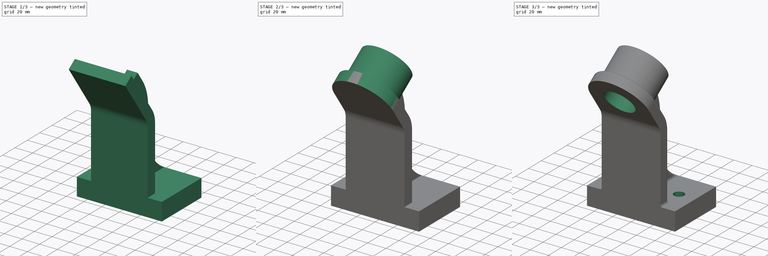
[diagram: build sequence overview — one tinted view per stage of 3, left to right]
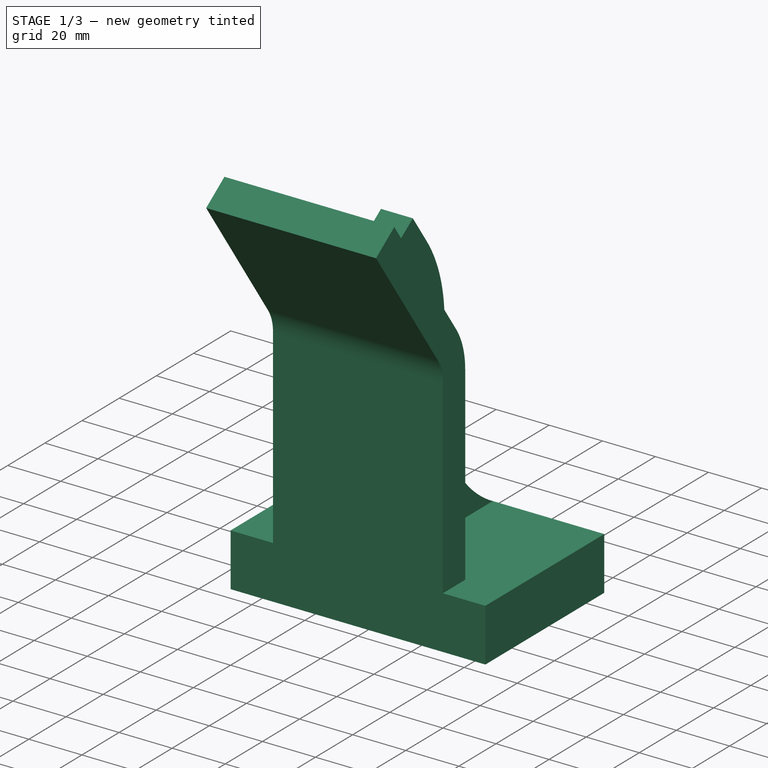
[diagram: stage 1 of 3 — iso view after this stage's code; geometry added in this stage tinted green]
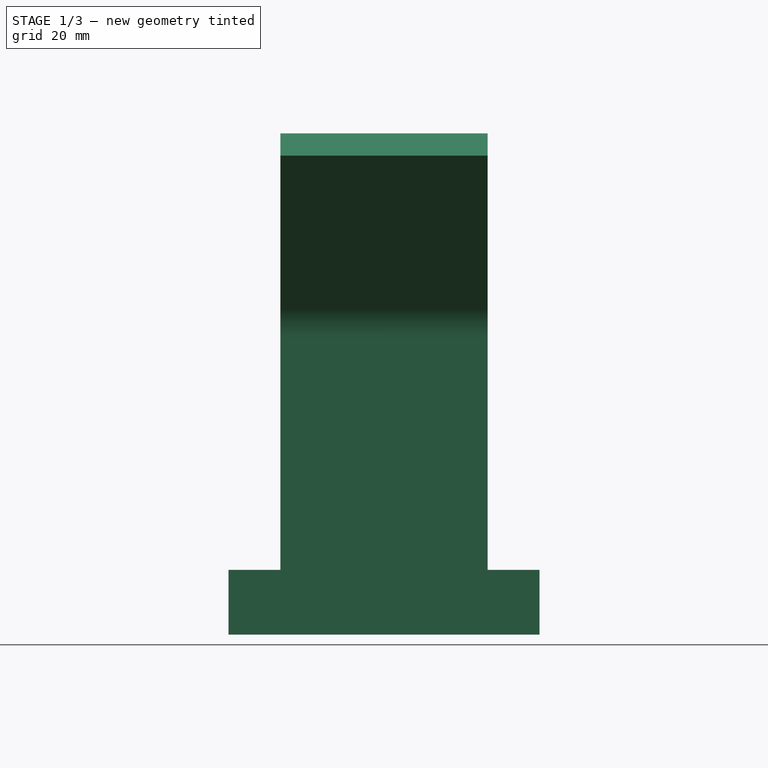
[diagram: stage 1 of 3 — front view after this stage's code; geometry added in this stage tinted green]
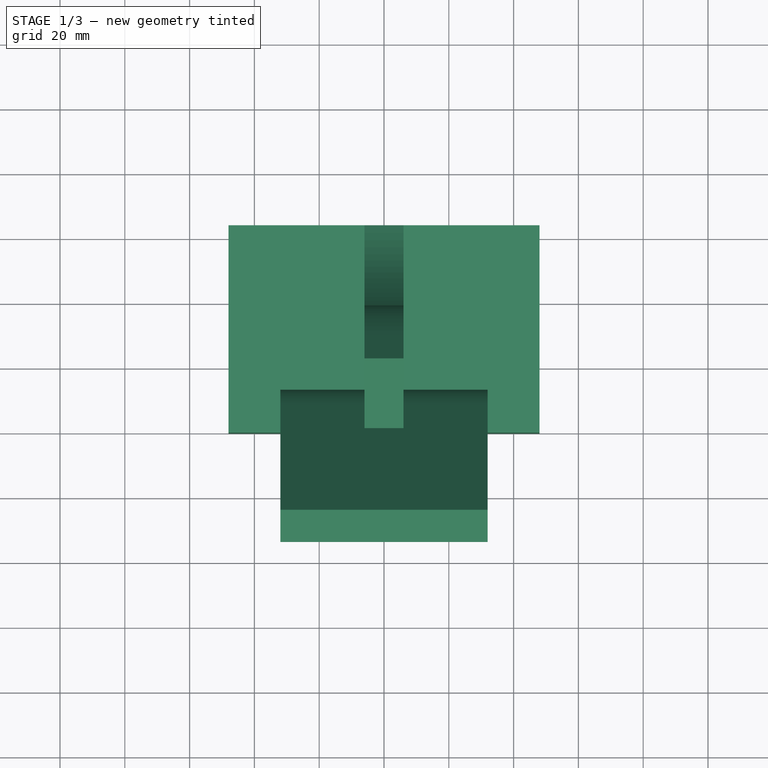
[diagram: stage 1 of 3 — top view after this stage's code; geometry added in this stage tinted green]
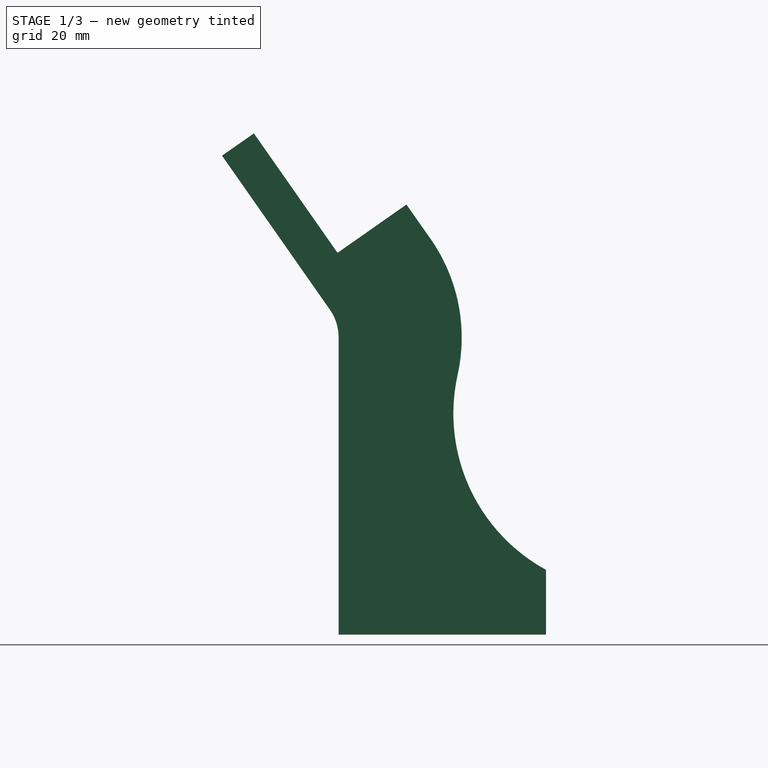
[diagram: stage 1 of 3 — right view after this stage's code; geometry added in this stage tinted green]
FCSTD DOCUMENT  (FreeCAD 1.0R39319 (Git))
Label: Mania2001-S2
License: All rights reserved
LicenseURL: https://en.wikipedia.org/wiki/All_rights_reserved
objects: Sketcher::SketchObject×7, PartDesign::Pad×4, PartDesign::Pocket×2, PartDesign::Hole×1, PartDesign::Fillet×1, PartDesign::Body×1
note: 39 computed .brp shape members not serialized (recipe doc carries the construction recipe); baked Part::Feature solids carry a one-line shape summary decoded from their .brp

FEATURE [Sketcher::SketchObject] Sketch
  ArcFitTolerance = 1e-06
  AttachmentSupport = -> [XY_Plane]
  FullyConstrained = true
  MakeInternals = false
  MapMode = 5
  sketch-geometry (4):
    g0: LineSegment StartX=-48 StartY=64 StartZ=0 EndX=-48 EndY=0 EndZ=0
    g1: LineSegment StartX=-48 StartY=0 StartZ=0 EndX=48 EndY=0 EndZ=0
    g2: LineSegment StartX=48 StartY=0 StartZ=0 EndX=48 EndY=64 EndZ=0
    g3: LineSegment StartX=48 StartY=64 StartZ=0 EndX=-48 EndY=64 EndZ=0
  constraints (11):
    c: Coincident(g0,g1)
    c: Coincident(g1,g2)
    c: Coincident(g2,g3)
    c: Coincident(g3,g0)
    c: Vertical(g0)
    c: Vertical(g2)
    c: Horizontal(g1)
    c: PointOnObject(g1,g-1)
    c: Symmetric(g2,g0,g-2)
    c: DistanceX(g3,g3) = 96
    c: DistanceY(g2,g2) = 64
FEATURE [PartDesign::Pad] Pad
  Direction = (0,0,1)
  Length = 20
  Length2 = 10
  Profile = -> Sketch
  ReferenceAxis = -> Sketch [N_Axis]
  Refine = true
  Suppressed = false
  Type = 0
FEATURE [Sketcher::SketchObject] Sketch001
  ArcFitTolerance = 1e-06
  AttachmentSupport = -> [YZ_Plane]
  ExternalGeometry = -> [Pad]
  FullyConstrained = true
  MakeInternals = false
  MapMode = 5
  Placement = pos=(0,0,0) rot=(0.57735,0.57735,0.57735;2.0944rad)
  sketch-geometry (9):
    g0: LineSegment StartX=0 StartY=20 StartZ=0 EndX=0 EndY=91.7148 EndZ=0
    g1: ArcOfCircle CenterX=-15 CenterY=91.7148 CenterZ=0 NormalX=0 NormalY=0 NormalZ=1 AngleXU=0 Radius=15 StartAngle=4e-16 EndAngle=0.610865
    g2: LineSegment StartX=-2.71272 StartY=100.318 StartZ=0 EndX=-35.9802 EndY=147.829 EndZ=0
    g3: LineSegment StartX=-35.9802 StartY=147.829 StartZ=0 EndX=-26.1503 EndY=154.712 EndZ=0
    g4: LineSegment StartX=-26.1503 StartY=154.712 StartZ=0 EndX=7.11711 EndY=107.201 EndZ=0
    g5: LineSegment StartX=12 StartY=91.7148 StartZ=0 EndX=12 EndY=20 EndZ=0
    g6: LineSegment StartX=12 StartY=20 StartZ=0 EndX=0 EndY=20 EndZ=0
    g7: LineSegment [constr] StartX=19 StartY=146 StartZ=0 EndX=-17.6257 EndY=121.616 EndZ=0
    g8: ArcOfCircle CenterX=-15 CenterY=91.7148 CenterZ=0 NormalX=0 NormalY=0 NormalZ=1 AngleXU=0 Radius=27 StartAngle=6.28318 EndAngle=6.89405
  constraints (25):
    c: PointOnObject(g0,g-2)
    c: Tangent(g0,g1) = -1.5708
    c: Tangent(g1,g2) = -1.5708
    c: Perpendicular(g2,g3) = 4.71239
    c: Coincident(g3,g4)
    c: Coincident(g5,g6)
    c: Coincident(g6,g-4)
    c: Horizontal(g6)
    c: DistanceX(g6,g6) = 12
    c: Parallel(g0,g5)
    c: Radius(g1) = 15
    c: Angle(g2,g-4) = 0.959931
    c: PointOnObject(g7,g2)
    c: Distance(g2,g7) = 32
    c: Distance(g7,g7) = 44
    c: DistanceY(g-1,g7) = 146
    c: Coincident(g6,g0)
    c: DistanceX(g7,g-4) = 45
    c: Equal(g4,g2)
    c: Coincident(g8,g1)
    c: Coincident(g8,g4)
    c: Coincident(g8,g5)
    c: Distance(g4,g2) = 12
    c: Distance(g3,g3) = 12
    c: Distance(g4,g4) = 58
FEATURE [PartDesign::Pad] Pad001
  BaseFeature = -> Pad
  Direction = (1,0,0)
  Length = 64
  Length2 = 10
  Midplane = true
  Profile = -> Sketch001
  ReferenceAxis = -> Sketch001 [N_Axis]
  Refine = true
  Suppressed = false
  Type = 0
FEATURE [Sketcher::SketchObject] Sketch002
  ArcFitTolerance = 1e-06
  AttachmentSupport = -> [YZ_Plane]
  ExternalGeometry = -> [Pad001]
  FullyConstrained = true
  MakeInternals = false
  MapMode = 5
  Placement = pos=(0,0,0) rot=(0.57735,0.57735,0.57735;2.0944rad)
  sketch-geometry (8):
    g0: LineSegment StartX=64 StartY=20 StartZ=0 EndX=12 EndY=20 EndZ=0
    g1: LineSegment StartX=12 StartY=20 StartZ=0 EndX=12 EndY=91.7148 EndZ=0
    g2: ArcOfCircle CenterX=-14.9331 CenterY=91.7148 CenterZ=0 NormalX=0 NormalY=0 NormalZ=1 AngleXU=0 Radius=26.9331 StartAngle=7.772e-13 EndAngle=0.611649
    g3: LineSegment StartX=7.11711 StartY=107.18 StartZ=0 EndX=-0.347727 EndY=117.823 EndZ=0
    g4: LineSegment StartX=-0.347727 StartY=117.823 StartZ=0 EndX=20.9385 EndY=132.753 EndZ=0
    g5: LineSegment StartX=20.9385 StartY=132.753 StartZ=0 EndX=28.4034 EndY=122.11 EndZ=0
    g6: ArcOfCircle CenterX=-14.9331 CenterY=91.7148 CenterZ=0 NormalX=0 NormalY=0 NormalZ=1 AngleXU=0 Radius=52.9331 StartAngle=6.06395 EndAngle=6.89483
    g7: ArcOfCircle CenterX=90.4164 CenterY=68.2408 CenterZ=0 NormalX=0 NormalY=0 NormalZ=1 AngleXU=0 Radius=55 StartAngle=2.92235 EndAngle=4.21139
  constraints (17):
    c: Coincident(g-6,g0)
    c: Coincident(g0,g-5)
    c: Coincident(g0,g1)
    c: Coincident(g1,g-5)
    c: Tangent(g1,g2) = -1.5708
    c: Coincident(g2,g-4)
    c: Tangent(g2,g3) = -1.5708
    c: Perpendicular(g3,g4) = 4.71239
    c: Coincident(g4,g5)
    c: Tangent(g5,g6) = 1.5708
    c: Tangent(g6,g7) = 1.5708
    c: Coincident(g7,g0)
    c: Coincident(g2,g6)
    c: Distance(g4,g4) = 26
    c: Parallel(g3,g5)
    c: Radius(g7) = 55
    c: Distance(g5,g5) = 13
FEATURE [PartDesign::Pad] Pad002
  BaseFeature = -> Pad001
  Direction = (1,0,0)
  Length = 12
  Length2 = 10
  Midplane = true
  Profile = -> Sketch002
  ReferenceAxis = -> Sketch002 [N_Axis]
  Refine = true
  Suppressed = false
  Type = 0
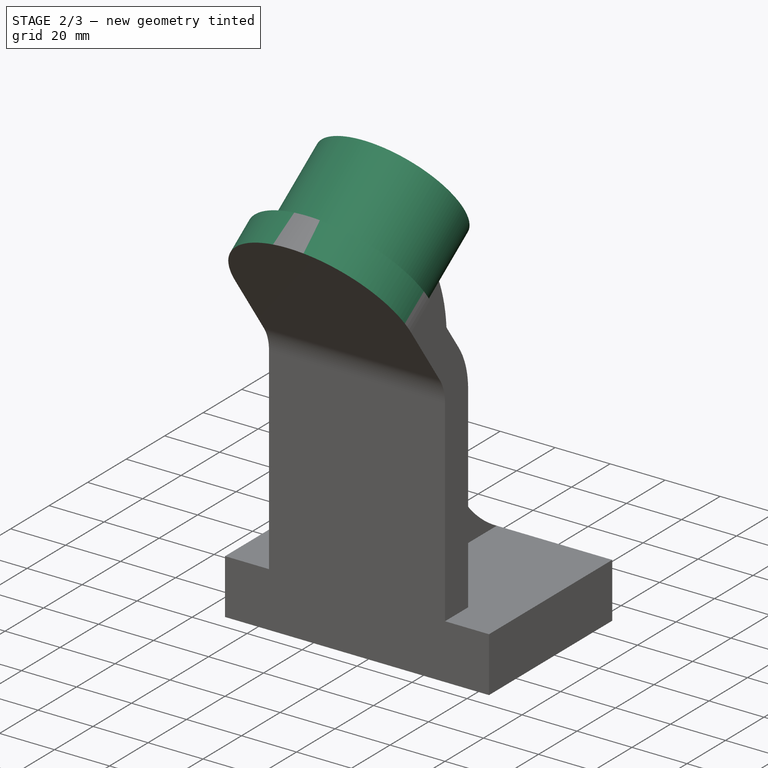
[diagram: stage 2 of 3 — iso view after this stage's code; geometry added in this stage tinted green]
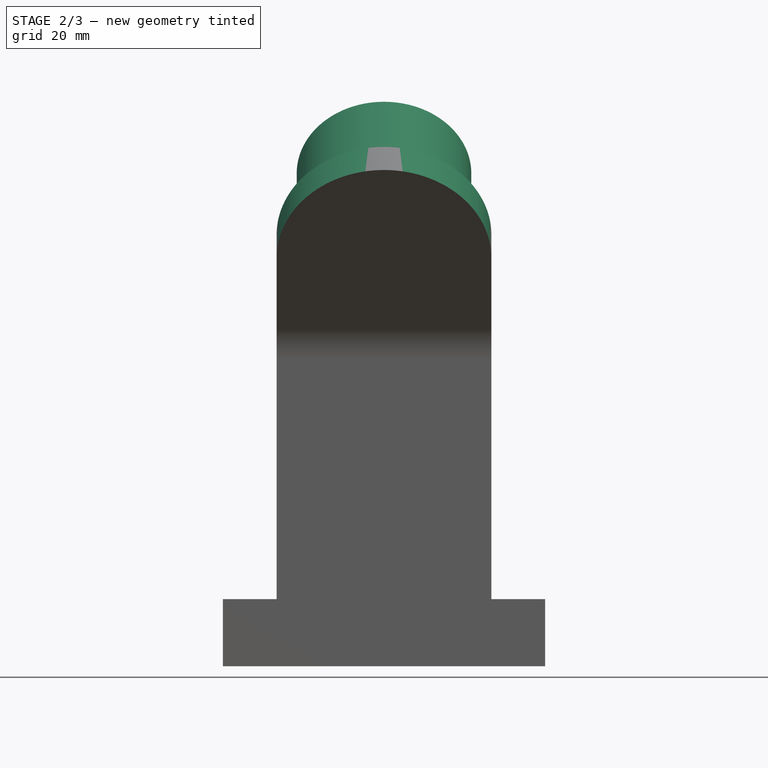
[diagram: stage 2 of 3 — front view after this stage's code; geometry added in this stage tinted green]
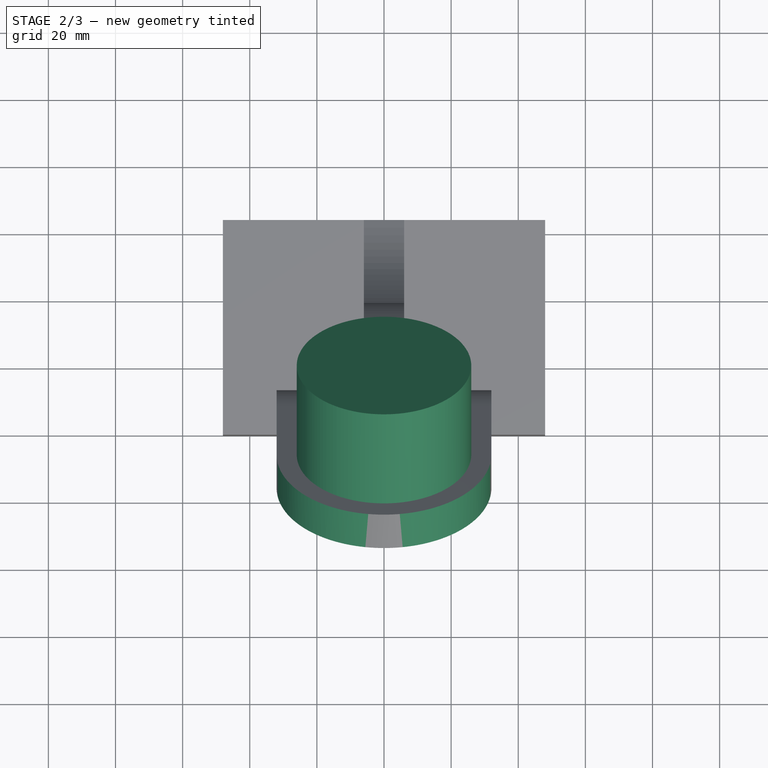
[diagram: stage 2 of 3 — top view after this stage's code; geometry added in this stage tinted green]
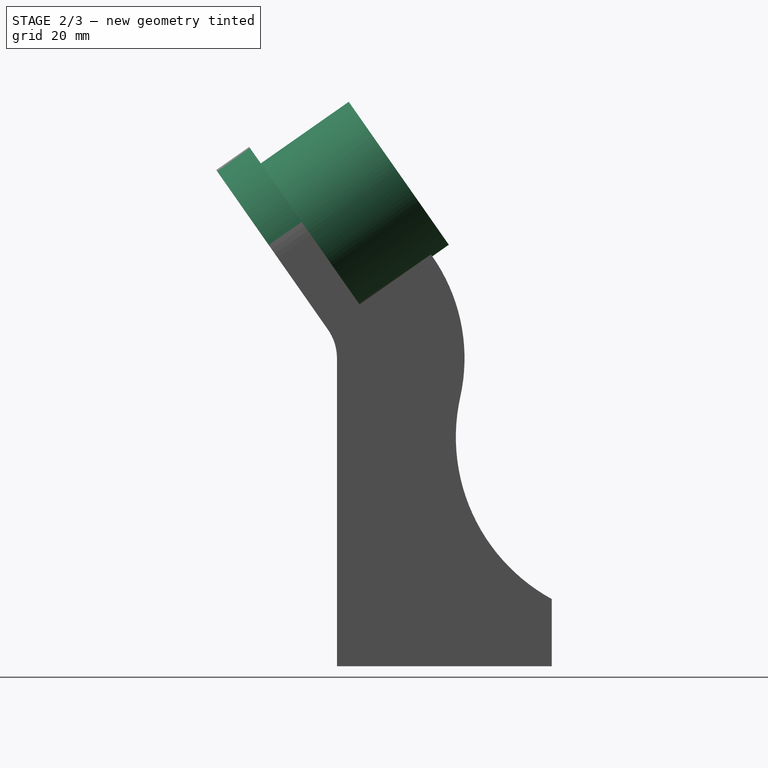
[diagram: stage 2 of 3 — right view after this stage's code; geometry added in this stage tinted green]
FEATURE [Sketcher::SketchObject] Sketch003
  ArcFitTolerance = 1e-06
  AttachmentSupport = -> [Pad002]
  ExternalGeometry = -> [Pad002]
  FullyConstrained = true
  MakeInternals = false
  MapMode = 5
  Placement = pos=(0,55.1438,38.6121) rot=(0,0.461749,0.887011;3.14159rad)
  sketch-geometry (1):
    g0: Circle CenterX=0 CenterY=109.732 CenterZ=0 NormalX=0 NormalY=0 NormalZ=1 AngleXU=0 Radius=26
  constraints (3):
    c: Diameter(g0) = 52
    c: PointOnObject(g0,g-2)
    c: Distance(g0,g-3) = 32
FEATURE [PartDesign::Pad] Pad003
  BaseFeature = -> Pad002
  Direction = (0,0.819152,0.573576)
  Length = 32
  Length2 = 10
  Profile = -> Sketch003
  ReferenceAxis = -> Sketch003 [N_Axis]
  Refine = true
  Suppressed = false
  Type = 0
FEATURE [Sketcher::SketchObject] Sketch004
  ArcFitTolerance = 1e-06
  AttachmentSupport = -> [Pad003]
  ExternalGeometry = -> [Pad003]
  FullyConstrained = true
  MakeInternals = false
  MapMode = 5
  Placement = pos=(0,55.1438,38.6121) rot=(0,0.461749,0.887011;3.14159rad)
  sketch-geometry (4):
    g0: ArcOfCircle CenterX=0 CenterY=109.732 CenterZ=0 NormalX=0 NormalY=0 NormalZ=1 AngleXU=0 Radius=32 StartAngle=0 EndAngle=3.14159
    g1: LineSegment StartX=32 StartY=109.732 StartZ=0 EndX=32 EndY=149.732 EndZ=0
    g2: LineSegment StartX=32 StartY=149.732 StartZ=0 EndX=-32 EndY=149.732 EndZ=0
    g3: LineSegment StartX=-32 StartY=149.732 StartZ=0 EndX=-32 EndY=109.732 EndZ=0
  constraints (12):
    c: Radius(g0) = 32
    c: PointOnObject(g0,g-3)
    c: DistanceY(g0,g-5) = 32
    c: Tangent(g0,g-4) = 1.5708
    c: Coincident(g1,g2)
    c: Coincident(g2,g3)
    c: Horizontal(g2)
    c: Vertical(g1)
    c: Vertical(g3)
    c: Coincident(g3,g0)
    c: Coincident(g1,g0)
    c: DistanceY(g1,g1) = 40
FEATURE [PartDesign::Pocket] Pocket
  BaseFeature = -> Pad003
  Direction = (0,-0.819152,-0.573576)
  Length = 5
  Length2 = 5
  Profile = -> Sketch004
  ReferenceAxis = -> Sketch004 [N_Axis]
  Refine = true
  Suppressed = false
  Type = 1
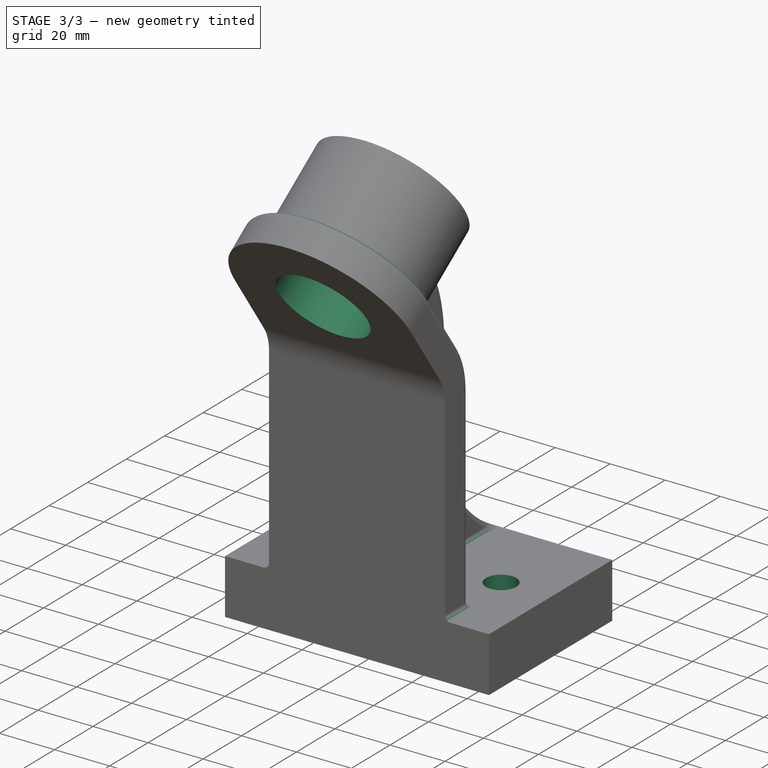
[diagram: stage 3 of 3 — iso view after this stage's code; geometry added in this stage tinted green]
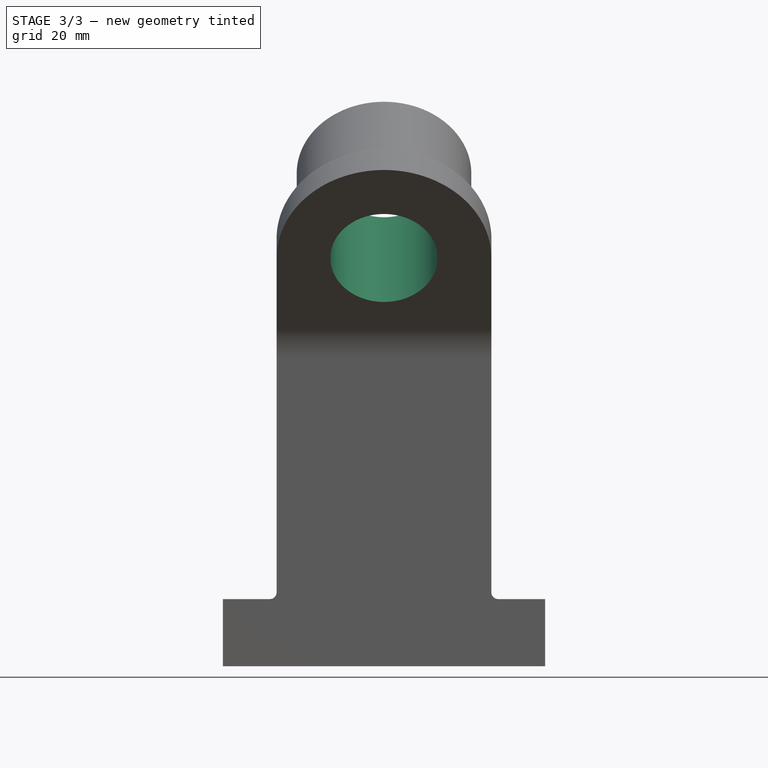
[diagram: stage 3 of 3 — front view after this stage's code; geometry added in this stage tinted green]
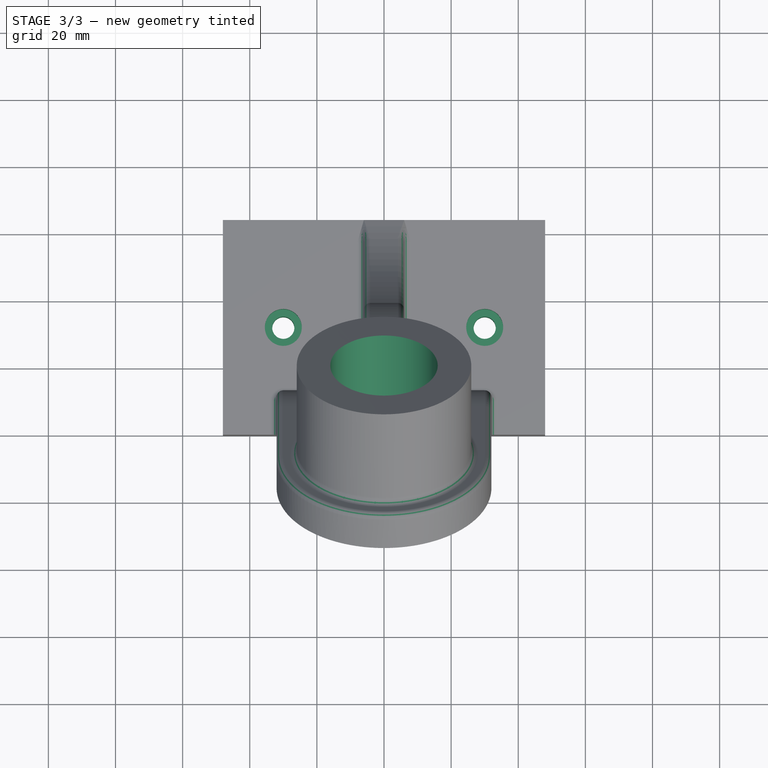
[diagram: stage 3 of 3 — top view after this stage's code; geometry added in this stage tinted green]
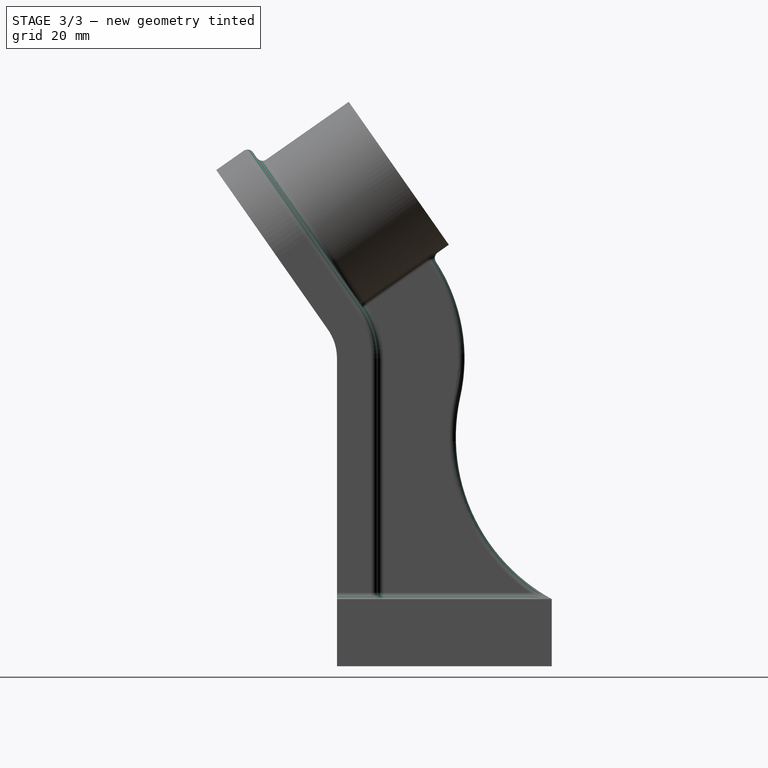
[diagram: stage 3 of 3 — right view after this stage's code; geometry added in this stage tinted green]
FEATURE [Sketcher::SketchObject] Sketch006
  ArcFitTolerance = 1e-06
  AttachmentSupport = -> [Pocket]
  ExternalGeometry = -> [Pocket]
  FullyConstrained = true
  MakeInternals = false
  MapMode = 5
  Placement = pos=(0,45.314,31.7292) rot=(1,0,0;2.18166rad)
  sketch-geometry (1):
    g0: Circle CenterX=0 CenterY=109.732 CenterZ=0 NormalX=0 NormalY=0 NormalZ=1 AngleXU=0 Radius=16
  constraints (2):
    c: Diameter(g0) = 32
    c: Coincident(g0,g-3)
FEATURE [Sketcher::SketchObject] Sketch007
  ArcFitTolerance = 1e-06
  AttachmentOffset = pos=(0,0,20) rot=(0,0,1;0rad)
  AttachmentSupport = -> [XY_Plane]
  FullyConstrained = true
  MakeInternals = false
  MapMode = 5
  Placement = pos=(0,0,20) rot=(0,0,1;0rad)
  sketch-geometry (2):
    g0: Circle CenterX=-30 CenterY=32 CenterZ=0 NormalX=0 NormalY=0 NormalZ=1 AngleXU=0 Radius=3
    g1: Circle CenterX=30 CenterY=32 CenterZ=0 NormalX=0 NormalY=0 NormalZ=1 AngleXU=0 Radius=3
  constraints (5):
    c: Diameter(g0) = 6
    c: Symmetric(g1,g0,g-2)
    c: DistanceX(g0,g1) = 60
    c: DistanceY(g-1,g1) = 32
    c: Equal(g1,g0)
FEATURE [PartDesign::Pocket] Pocket001
  BaseFeature = -> Pocket
  Direction = (0,0.819152,0.573576)
  Length = 5
  Length2 = 5
  Profile = -> Sketch006
  ReferenceAxis = -> Sketch006 [N_Axis]
  Refine = true
  Suppressed = false
  Type = 1
FEATURE [PartDesign::Hole] Hole
  BaseFeature = -> Pocket001
  CustomThreadClearance = 0
  Depth = 25
  DepthType = 0
  Diameter = 6.6
  DrillForDepth = false
  DrillPoint = 1
  DrillPointAngle = 118
  HoleCutCountersinkAngle = 90
  HoleCutCustomValues = false
  HoleCutDepth = 6.4
  HoleCutDiameter = 11
  HoleCutType = 1
  ModelThread = false
  Profile = -> Sketch007
  Refine = true
  Suppressed = false
  Tapered = false
  TaperedAngle = 90
  ThreadClass = 0
  ThreadDepth = 25
  ThreadDepthType = 0
  ThreadDirection = 0
  ThreadFit = 0
  ThreadSize = 14
  ThreadType = 1
  Threaded = false
  UseCustomThreadClearance = false
FEATURE [PartDesign::Fillet] Fillet
  Base = -> Hole [Edge22,Edge21,Edge49,Edge20,Edge30,Edge52,Edge79,Edge75,Edge40,Edge58,Edge31,Edge32,Edge61,Edge25,Edge27,Edge26]
  BaseFeature = -> Hole
  Radius = 2
  Refine = true
  SupportTransform = false
  Suppressed = false
  UseAllEdges = false
FEATURE [PartDesign::Body] Body
  AllowCompound = false
  Group = -> [Sketch,Pad,Sketch001,Pad001,Sketch002,Pad002,Sketch003,Pad003,Sketch004,Pocket,Sketch006,Sketch007,Pocket001,Hole,Fillet]
  Origin = -> Origin
  Tip = -> Fillet
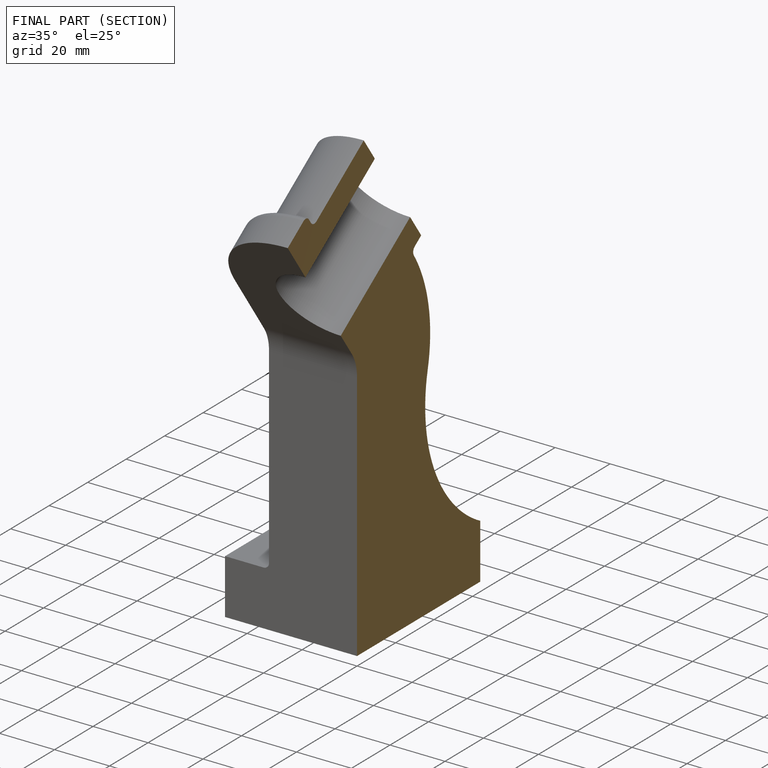
[diagram: finished part — half-section view (interior)]
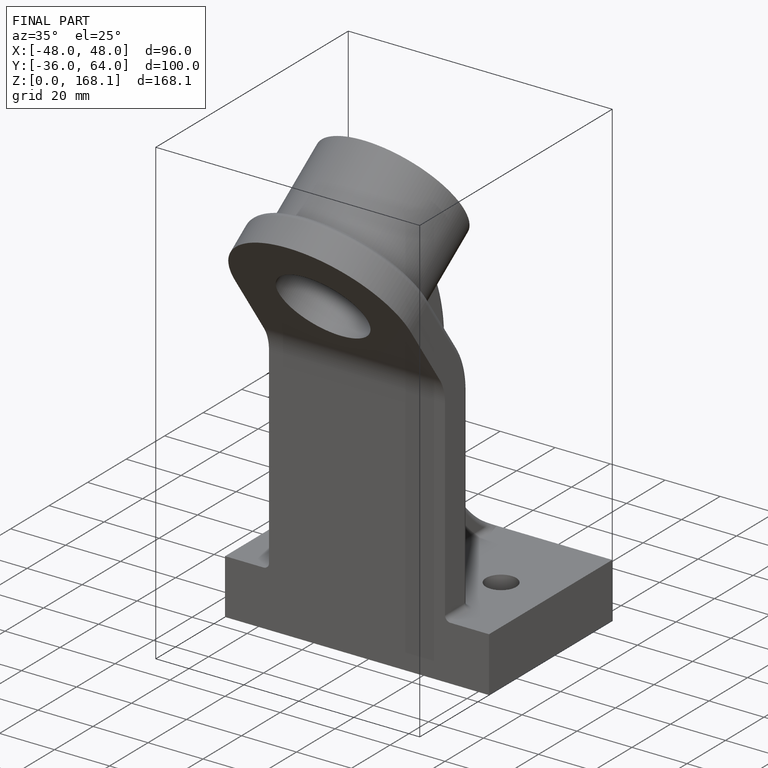
[diagram: finished part — iso view with bounding-box wireframe]
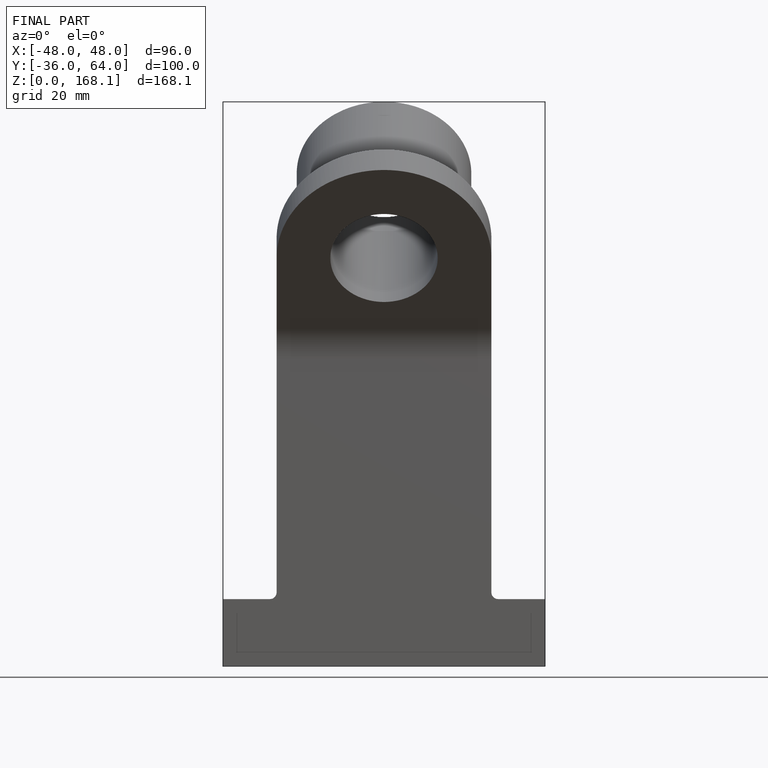
[diagram: finished part — front view with bounding-box wireframe]
